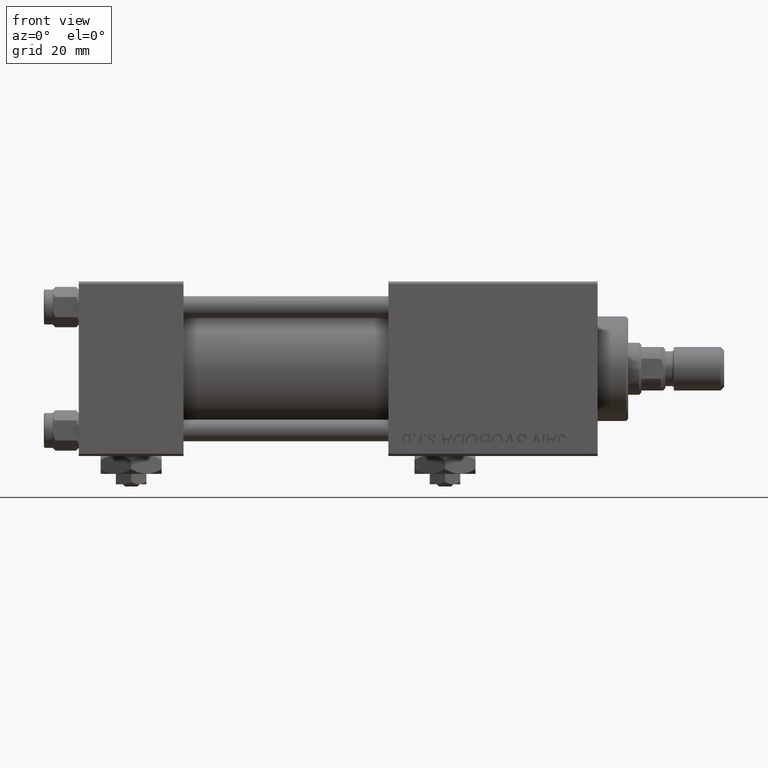
[diagram: clean part render]
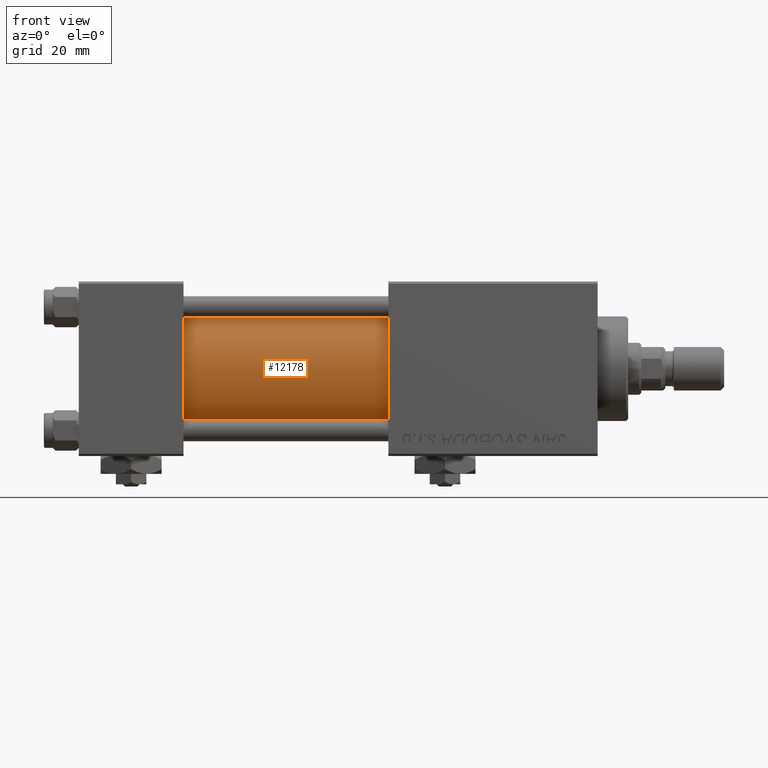
[diagram: same view with one face highlighted and labeled with its STEP entity id]
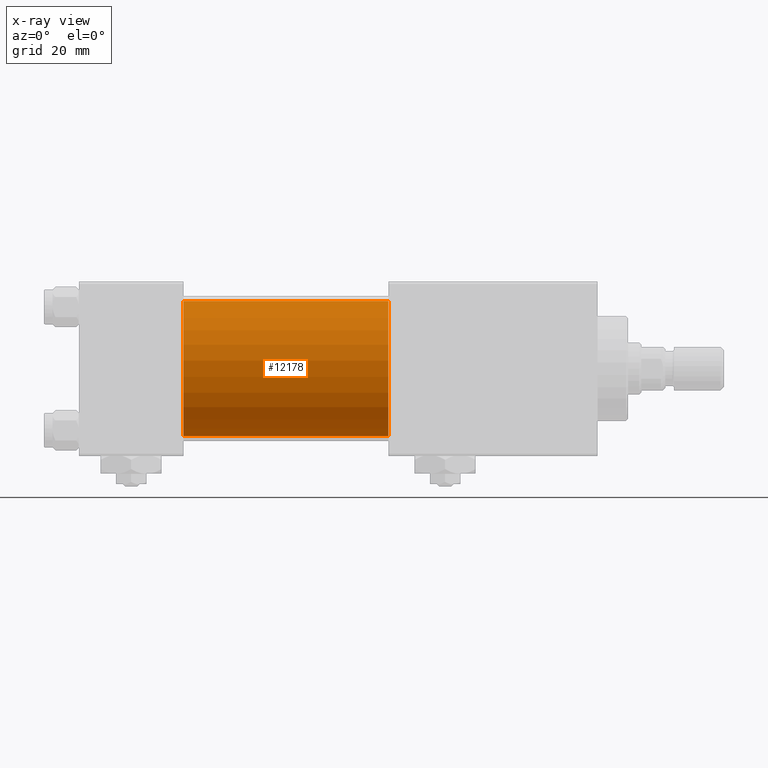
[diagram: x-ray of the same camera — body ghosted, the highlighted face saturated]
A machine part, front view. The second image highlights one B-rep face of the part: STEP entity #12178.
The next image is the same camera in x-ray: the body ghosted, the highlighted face saturated — about 0% of this face is hidden behind the body in this view.
In plain terms, the highlighted cylindrical surface (partial cylindrical patch) has radius 15.5 mm, axis along (-1, -0, -0).
Its self-contained STEP definition (entity closure, byte-faithful):
#1887 = VECTOR ( 'NONE', #26559, 1000.000000000000000 ) ;
#3453 = CARTESIAN_POINT ( 'NONE',  ( 24.00000000000000000, -2.602085213965210642E-15, 15.50000000000000000 ) ) ;
#5026 = LINE ( 'NONE', #50523, #1887 ) ;
#7140 = DIRECTION ( 'NONE',  ( 1.000000000000000000, 0.000000000000000000, 0.000000000000000000 ) ) ;
#7407 = AXIS2_PLACEMENT_3D ( 'NONE', #33636, #46406, #18186 ) ;
#12178 = ADVANCED_FACE ( 'NONE', ( #30432 ), #13946, .T. ) ;
#13059 = LINE ( 'NONE', #16529, #31593 ) ;
#13946 = CYLINDRICAL_SURFACE ( 'NONE', #7407, 15.50000000000000000 ) ;
#15707 = ORIENTED_EDGE ( 'NONE', *, *, #29843, .T. ) ;
#16529 = CARTESIAN_POINT ( 'NONE',  ( 71.00000000000001421, -2.602085213965210642E-15, 15.50000000000000000 ) ) ;
#17457 = EDGE_CURVE ( 'NONE', #39541, #30128, #50831, .T. ) ;
#18186 = DIRECTION ( 'NONE',  ( 0.000000000000000000, 0.000000000000000000, 1.000000000000000000 ) ) ;
#18337 = ORIENTED_EDGE ( 'NONE', *, *, #44733, .T. ) ;
#19331 = ORIENTED_EDGE ( 'NONE', *, *, #17457, .F. ) ;
#19333 = VERTEX_POINT ( 'NONE', #45008 ) ;
#22194 = CIRCLE ( 'NONE', #39230, 15.50000000000000000 ) ;
#22306 = CARTESIAN_POINT ( 'NONE',  ( 71.00000000000001421, -2.602085213965210642E-15, 0.000000000000000000 ) ) ;
#26559 = DIRECTION ( 'NONE',  ( -1.000000000000000000, -0.000000000000000000, -0.000000000000000000 ) ) ;
#27863 = AXIS2_PLACEMENT_3D ( 'NONE', #22306, #7140, #46537 ) ;
#29843 = EDGE_CURVE ( 'NONE', #39541, #37338, #13059, .T. ) ;
#30128 = VERTEX_POINT ( 'NONE', #40416 ) ;
#30432 = FACE_OUTER_BOUND ( 'NONE', #33449, .T. ) ;
#31593 = VECTOR ( 'NONE', #32767, 1000.000000000000000 ) ;
#32767 = DIRECTION ( 'NONE',  ( -1.000000000000000000, -0.000000000000000000, -0.000000000000000000 ) ) ;
#33449 = EDGE_LOOP ( 'NONE', ( #35125, #19331, #15707, #18337 ) ) ;
#33636 = CARTESIAN_POINT ( 'NONE',  ( 71.00000000000001421, -2.602085213965210642E-15, 0.000000000000000000 ) ) ;
#35125 = ORIENTED_EDGE ( 'NONE', *, *, #45737, .F. ) ;
#37338 = VERTEX_POINT ( 'NONE', #3453 ) ;
#39230 = AXIS2_PLACEMENT_3D ( 'NONE', #39777, #51486, #51739 ) ;
#39541 = VERTEX_POINT ( 'NONE', #49169 ) ;
#39777 = CARTESIAN_POINT ( 'NONE',  ( 24.00000000000000000, -2.602085213965210642E-15, 0.000000000000000000 ) ) ;
#40416 = CARTESIAN_POINT ( 'NONE',  ( 71.00000000000001421, -7.038826752868131828E-16, -15.50000000000000000 ) ) ;
#44733 = EDGE_CURVE ( 'NONE', #37338, #19333, #22194, .T. ) ;
#45008 = CARTESIAN_POINT ( 'NONE',  ( 24.00000000000000000, -7.038826752868131828E-16, -15.50000000000000000 ) ) ;
#45737 = EDGE_CURVE ( 'NONE', #30128, #19333, #5026, .T. ) ;
#46406 = DIRECTION ( 'NONE',  ( -1.000000000000000000, -0.000000000000000000, -0.000000000000000000 ) ) ;
#46537 = DIRECTION ( 'NONE',  ( 0.000000000000000000, 0.000000000000000000, -1.000000000000000000 ) ) ;
#49169 = CARTESIAN_POINT ( 'NONE',  ( 71.00000000000001421, -2.602085213965210642E-15, 15.50000000000000000 ) ) ;
#50523 = CARTESIAN_POINT ( 'NONE',  ( 71.00000000000001421, -7.038826752868131828E-16, -15.50000000000000000 ) ) ;
#50831 = CIRCLE ( 'NONE', #27863, 15.50000000000000000 ) ;
#51486 = DIRECTION ( 'NONE',  ( 1.000000000000000000, 0.000000000000000000, 0.000000000000000000 ) ) ;
#51739 = DIRECTION ( 'NONE',  ( 0.000000000000000000, 0.000000000000000000, 1.000000000000000000 ) ) ;